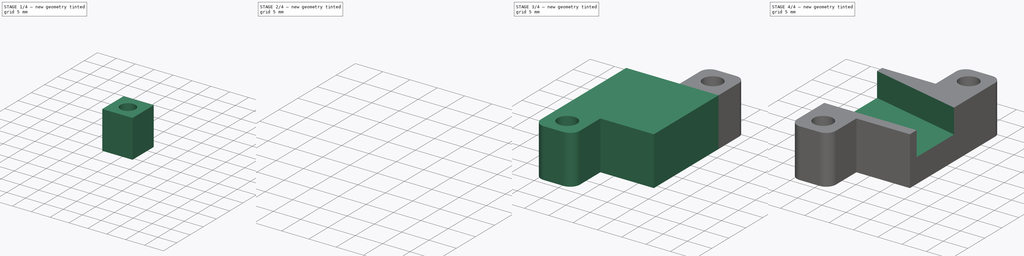
[diagram: build sequence overview — one tinted view per stage of 4, left to right]
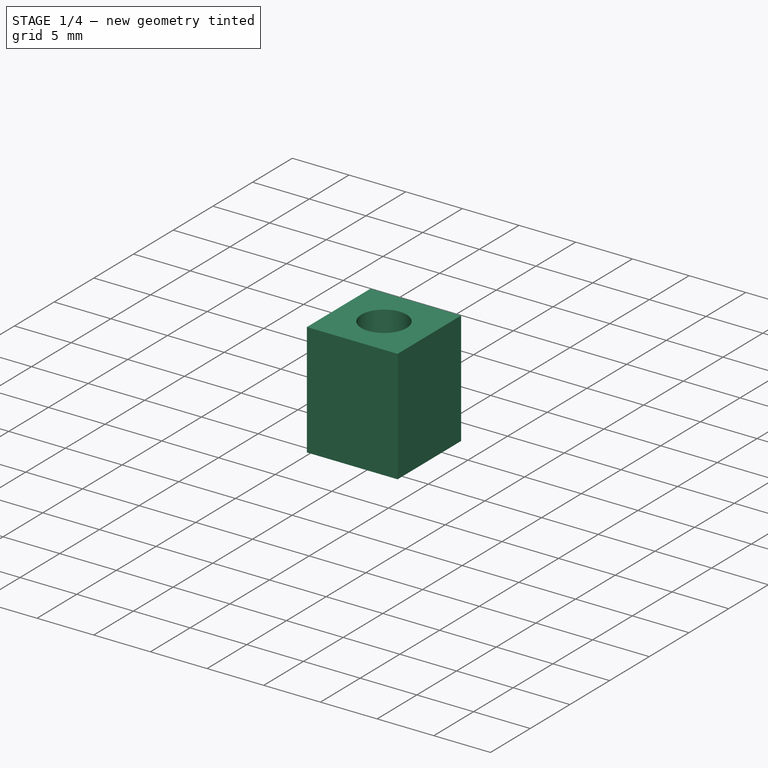
[diagram: stage 1 of 4 — iso view after this stage's code; geometry added in this stage tinted green]
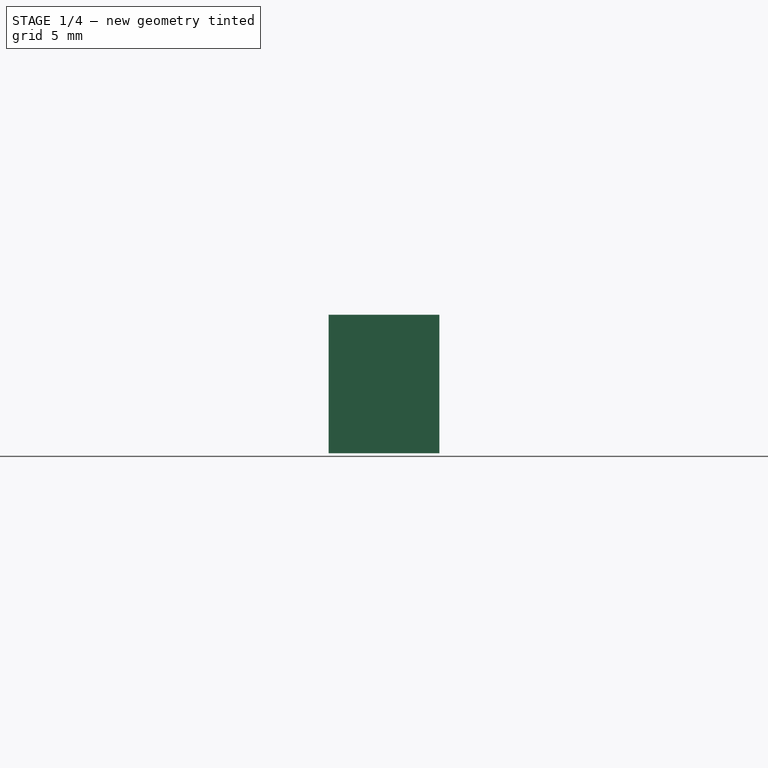
[diagram: stage 1 of 4 — front view after this stage's code; geometry added in this stage tinted green]
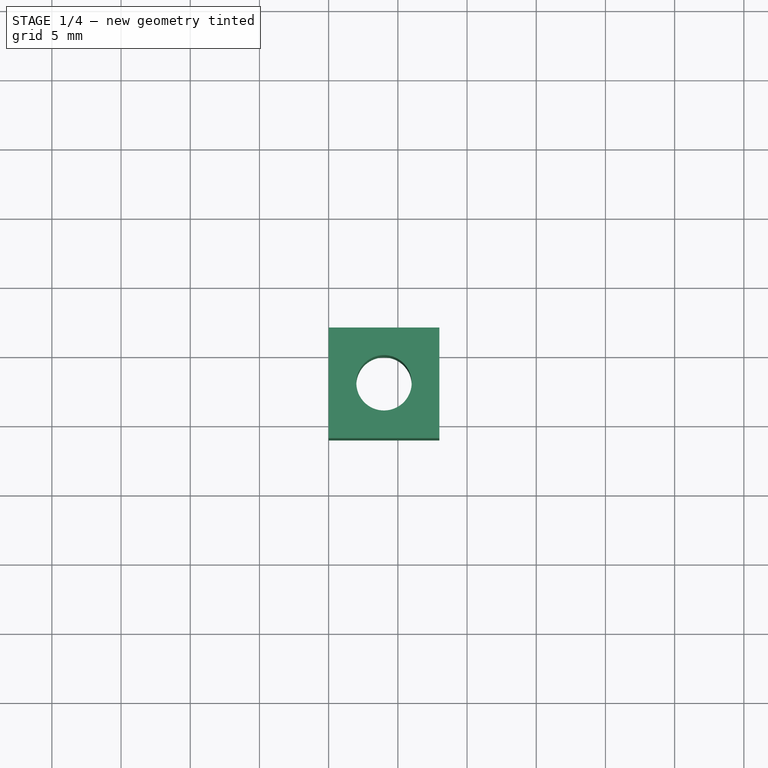
[diagram: stage 1 of 4 — top view after this stage's code; geometry added in this stage tinted green]
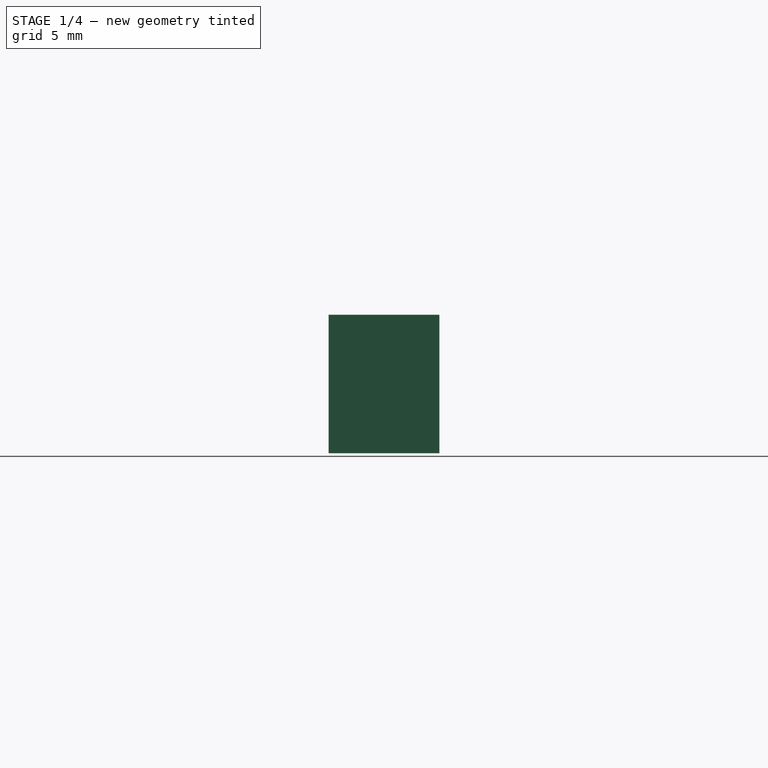
[diagram: stage 1 of 4 — right view after this stage's code; geometry added in this stage tinted green]
FCSTD DOCUMENT  (FreeCAD 0.19R)
Label: CaliperHeads
License: All rights reserved
LicenseURL: http://en.wikipedia.org/wiki/All_rights_reserved
objects: Part::Box×3, Part::Cut×3, Part::Cylinder×2, Part::Fillet×2, Sketcher::SketchObject×1, PartDesign::Pad×1, PartDesign::Body×1, Part::MultiFuse×1
note: 15 computed .brp shape members not serialized (recipe doc carries the construction recipe); baked Part::Feature solids carry a one-line shape summary decoded from their .brp

FEATURE [Part::Box] Box006  label="Cube006"
  AttacherType = Attacher::AttachEngine3D
  Height = 10
  Length = 8
  Width = 8
FEATURE [Part::Cylinder] Cylinder007
  Angle = 360
  AttacherType = Attacher::AttachEngine3D
  Height = 10
  Placement = pos=(4,4,0) rot=(0,0,1;0rad)
  Radius = 2
FEATURE [Part::Cut] Cut007
  Base = -> Box006
  Placement = pos=(45,14,0) rot=(0,0,1;0rad)
  Tool = -> Cylinder007
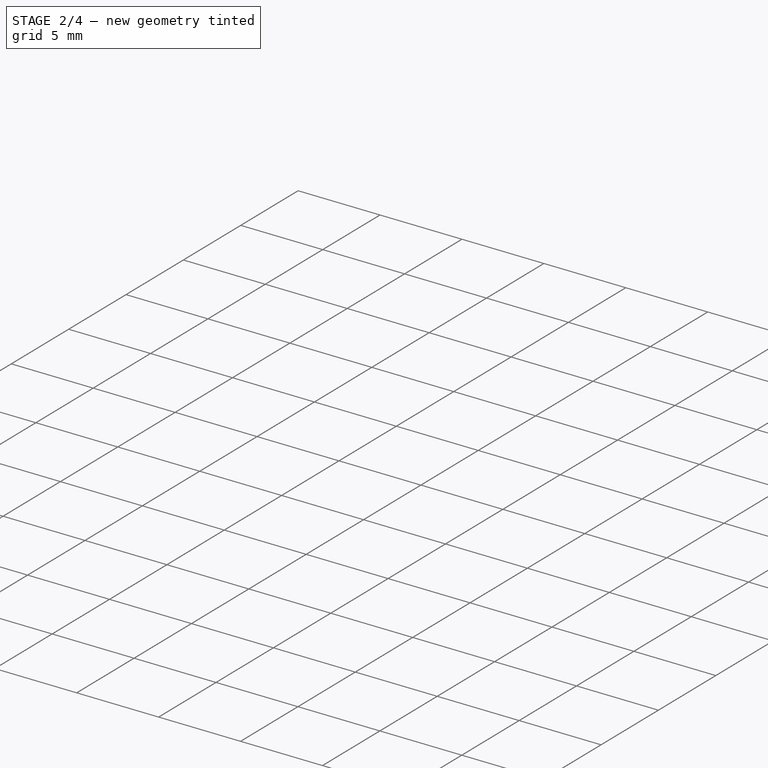
[diagram: stage 2 of 4 — iso view after this stage's code; geometry added in this stage tinted green]
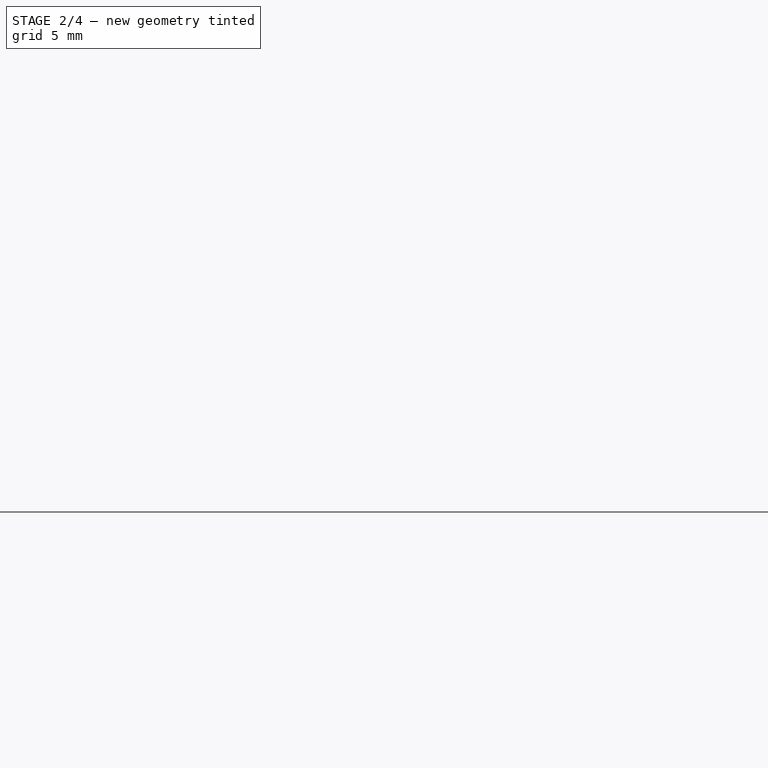
[diagram: stage 2 of 4 — front view after this stage's code; geometry added in this stage tinted green]
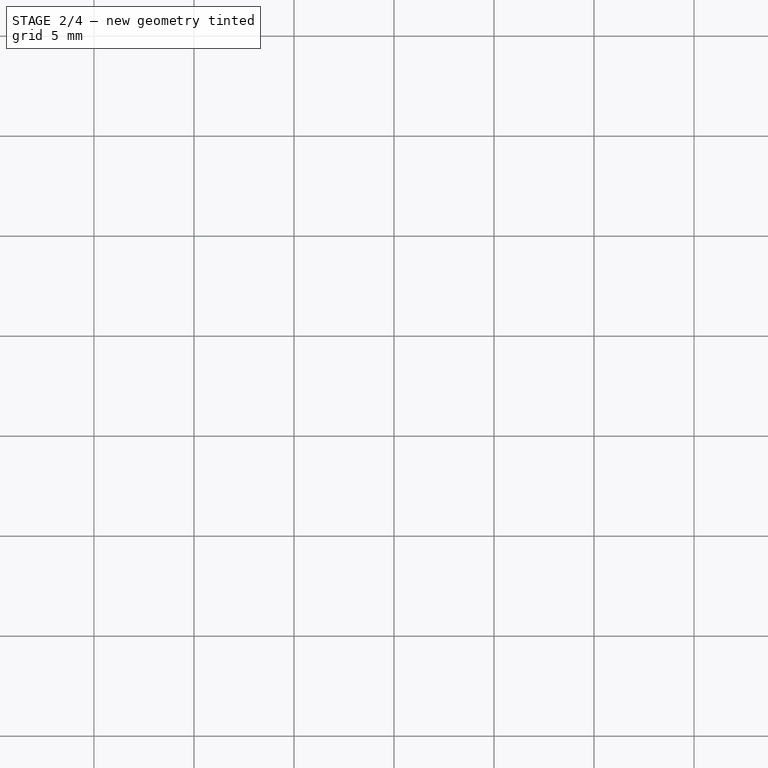
[diagram: stage 2 of 4 — top view after this stage's code; geometry added in this stage tinted green]
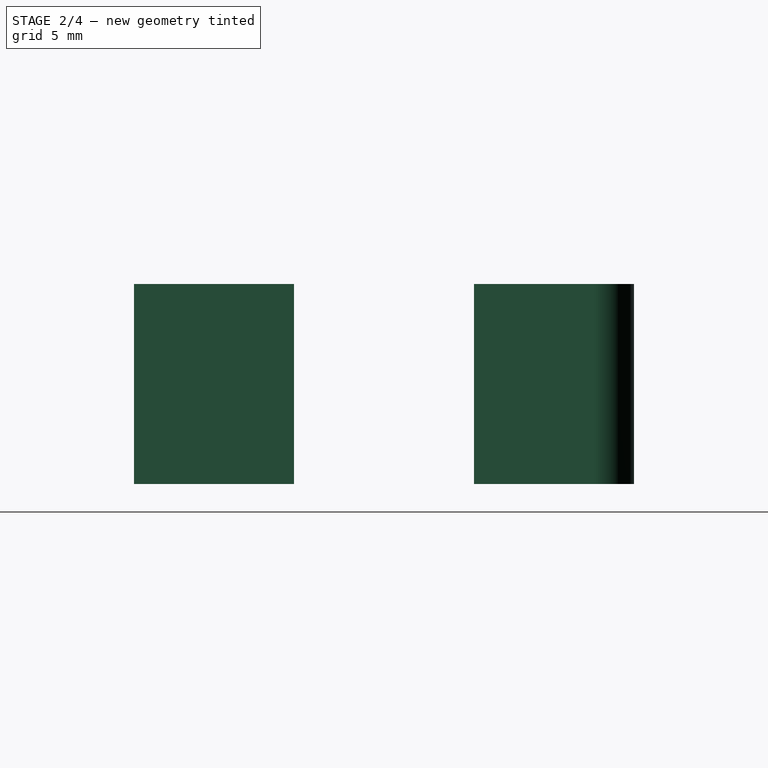
[diagram: stage 2 of 4 — right view after this stage's code; geometry added in this stage tinted green]
FEATURE [Part::Box] Box005  label="Cube005"
  AttacherType = Attacher::AttachEngine3D
  Height = 10
  Length = 8
  Width = 8
FEATURE [Part::Cylinder] Cylinder006
  Angle = 360
  AttacherType = Attacher::AttachEngine3D
  Height = 10
  Placement = pos=(4,4,0) rot=(0,0,1;0rad)
  Radius = 2
FEATURE [Part::Fillet] Fillet003
  Base = -> Cut007
  Edges = 2 edges r=2: [Edge3,Edge12]
  Placement = pos=(36,3,0) rot=(0,0,1;0rad)
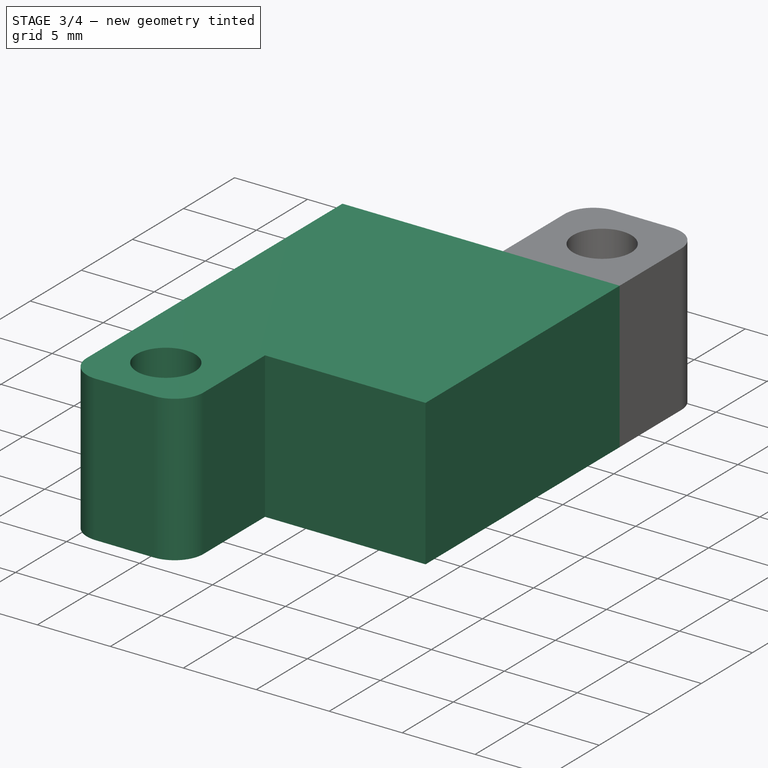
[diagram: stage 3 of 4 — iso view after this stage's code; geometry added in this stage tinted green]
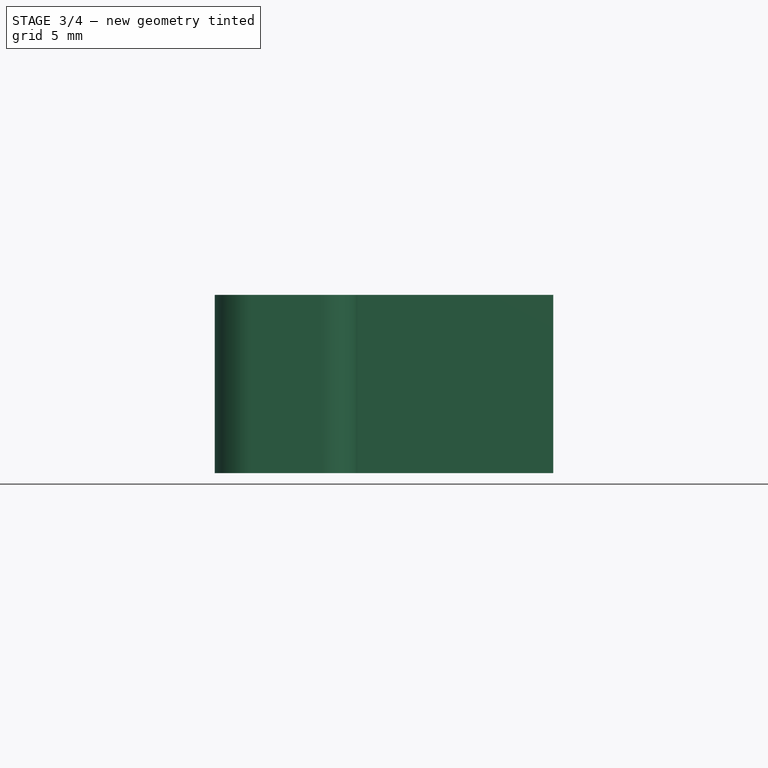
[diagram: stage 3 of 4 — front view after this stage's code; geometry added in this stage tinted green]
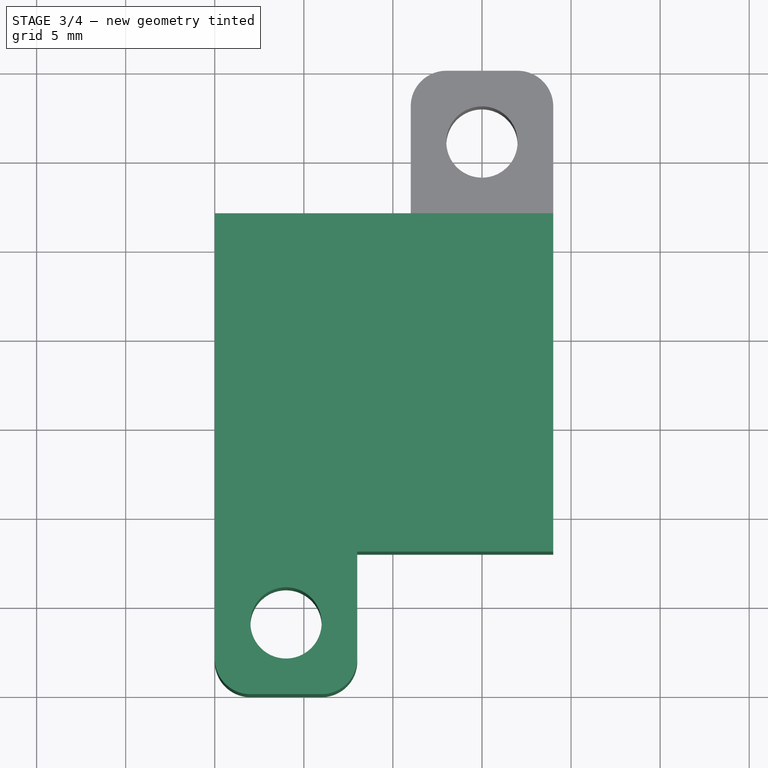
[diagram: stage 3 of 4 — top view after this stage's code; geometry added in this stage tinted green]
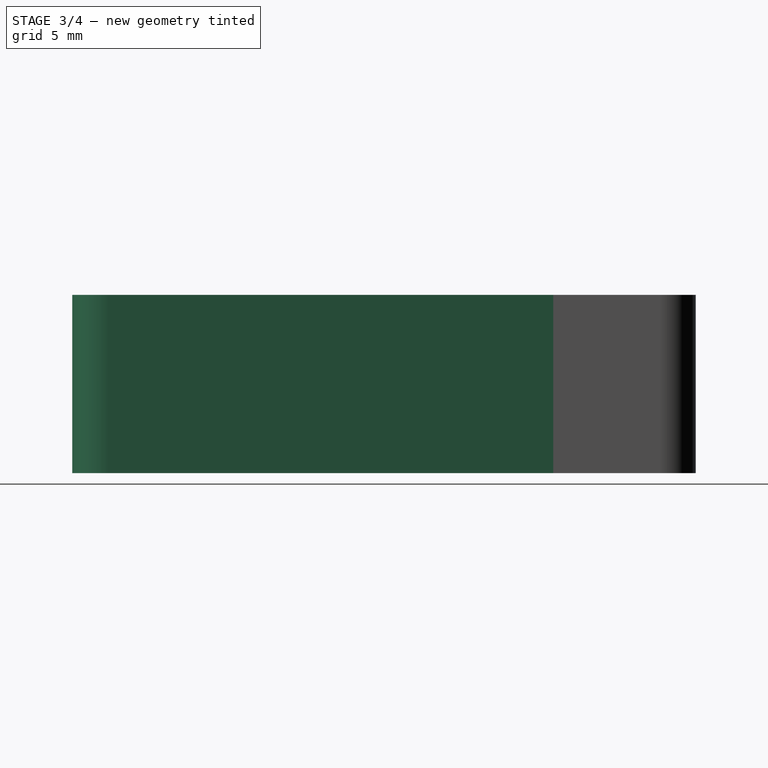
[diagram: stage 3 of 4 — right view after this stage's code; geometry added in this stage tinted green]
FEATURE [PartDesign::Body] Body002  label="300mmBody"
  Group = -> [Sketch002,Pad002]
  Origin = -> Origin002
  Placement = pos=(0,0,5) rot=(0,0,1;0rad)
  Tip = -> Pad002
FEATURE [Part::Box] Box002  label="Cube002"
  AttacherType = Attacher::AttachEngine3D
  Height = 10
  Length = 19
  Placement = pos=(70,-2,0) rot=(0,0,1;0rad)
  Width = 19
FEATURE [Part::Cut] Cut006
  Base = -> Box005
  Placement = pos=(30,-10,0) rot=(0,0,1;0rad)
  Tool = -> Cylinder006
FEATURE [Part::Fillet] Fillet002
  Base = -> Cut006
  Edges = 2 edges r=2: [Edge1,Edge6]
  Placement = pos=(40,0,0) rot=(0,0,1;0rad)
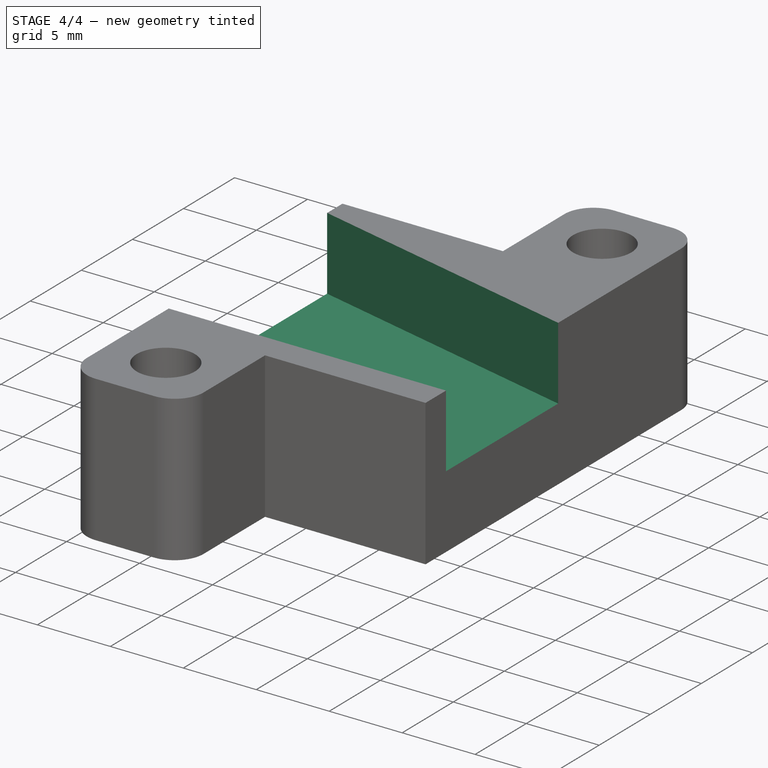
[diagram: stage 4 of 4 — iso view after this stage's code; geometry added in this stage tinted green]
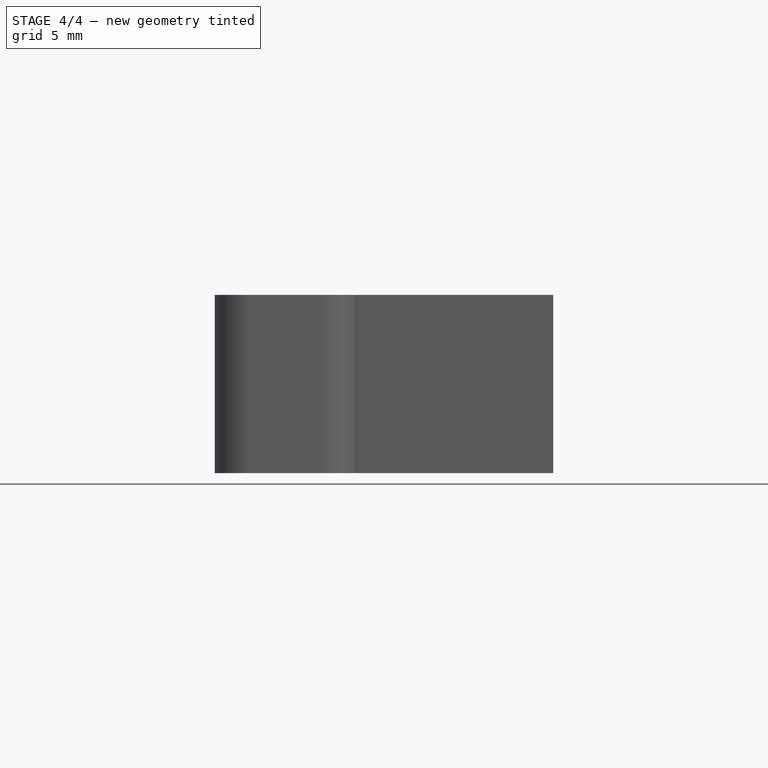
[diagram: stage 4 of 4 — front view after this stage's code; geometry added in this stage tinted green]
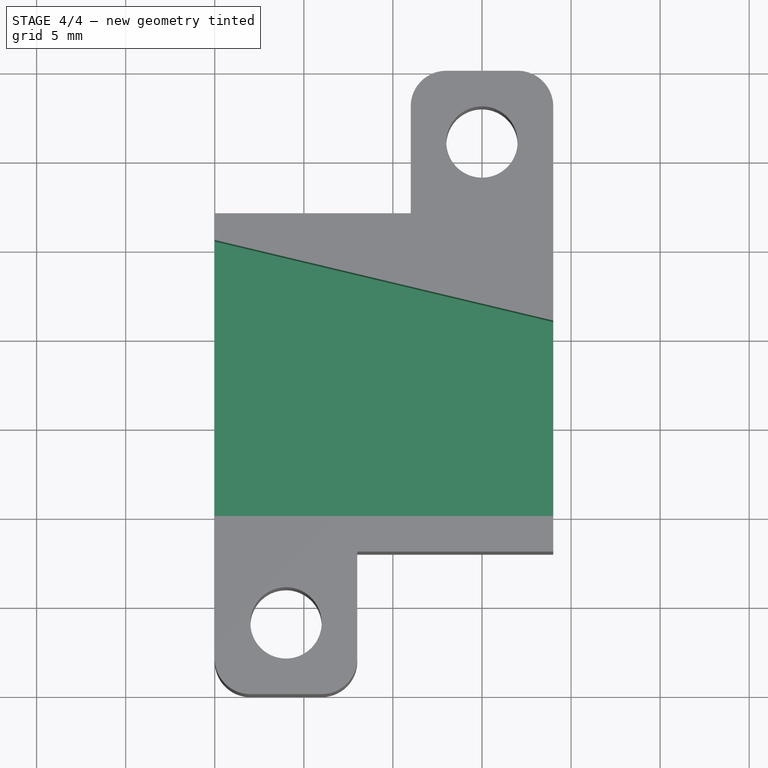
[diagram: stage 4 of 4 — top view after this stage's code; geometry added in this stage tinted green]
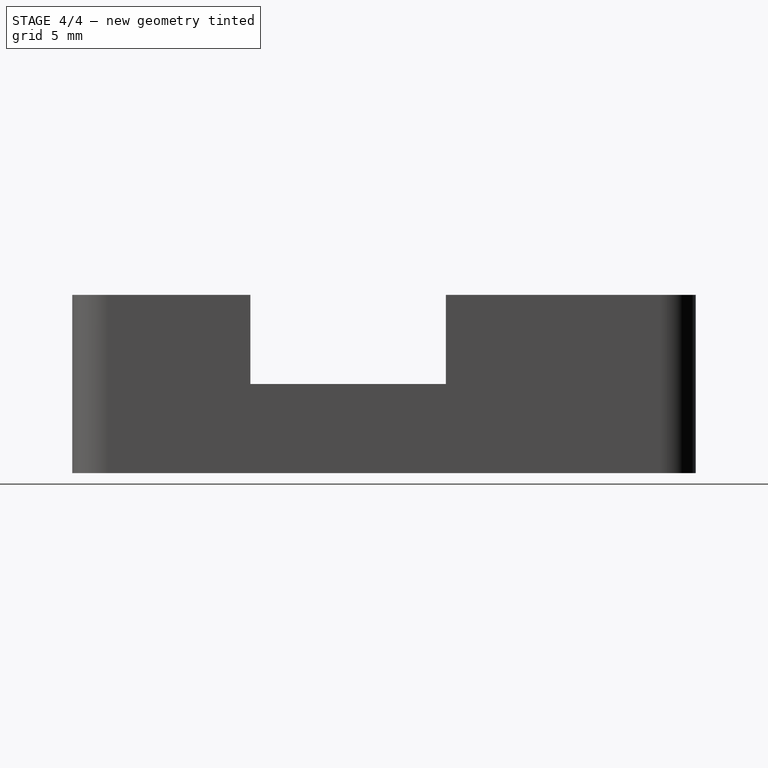
[diagram: stage 4 of 4 — right view after this stage's code; geometry added in this stage tinted green]
FEATURE [Sketcher::SketchObject] Sketch002
  FullyConstrained = true
  Placement = pos=(0,0,0) rot=(0,0,1;3.14159rad)
  sketch-geometry (4):
    g0: LineSegment StartX=-70 StartY=8.9e-15 StartZ=0 EndX=-70 EndY=-15.5 EndZ=0
    g1: LineSegment StartX=-70 StartY=-15.5 StartZ=0 EndX=-101.5 EndY=-8 EndZ=0
    g2: LineSegment StartX=-101.5 StartY=-8 StartZ=0 EndX=-101.5 EndY=8.9e-15 EndZ=0
    g3: LineSegment StartX=-101.5 StartY=8.9e-15 StartZ=0 EndX=-70 EndY=8.9e-15 EndZ=0
  constraints (12):
    c: Horizontal(g3)
    c: Vertical(g2)
    c: Vertical(g0)
    c: Coincident(g2,g3)
    c: Coincident(g0,g3)
    c: Coincident(g1,g2)
    c: Coincident(g0,g1)
    c: DistanceY(g2,g2) = 8
    c: DistanceY(g0,g0) = 15.5
    c: DistanceX(g3,g3) = 31.5
    c: DistanceX(g0,g-1) = 70
    c: DistanceY(g-1,g0) = 0
FEATURE [PartDesign::Pad] Pad002
  Direction = (1,1,1)
  Length = 5
  Length2 = 100
  Placement = pos=(0,0,0) rot=(0,0,1;3.14159rad)
  Profile = -> Sketch002
  Type = 0
FEATURE [Part::Cut] Cut002  label="300mm"
  Base = -> Box002
  Tool = -> Body002
FEATURE [Part::MultiFuse] Fusion001  label="300mmHolder"
  Shapes = -> [Cut002,Fillet002,Fillet003]
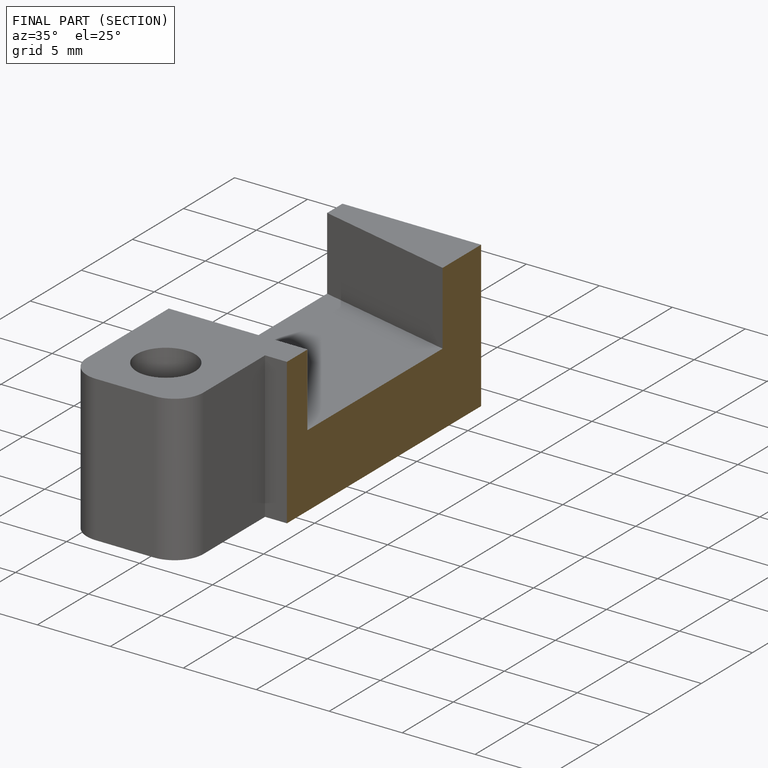
[diagram: finished part — half-section view (interior)]
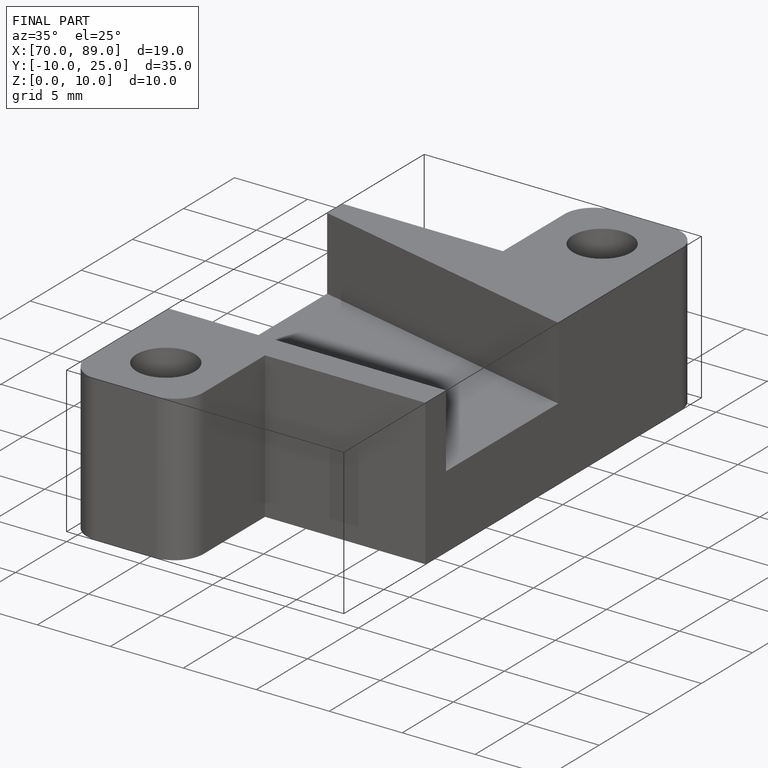
[diagram: finished part — iso view with bounding-box wireframe]
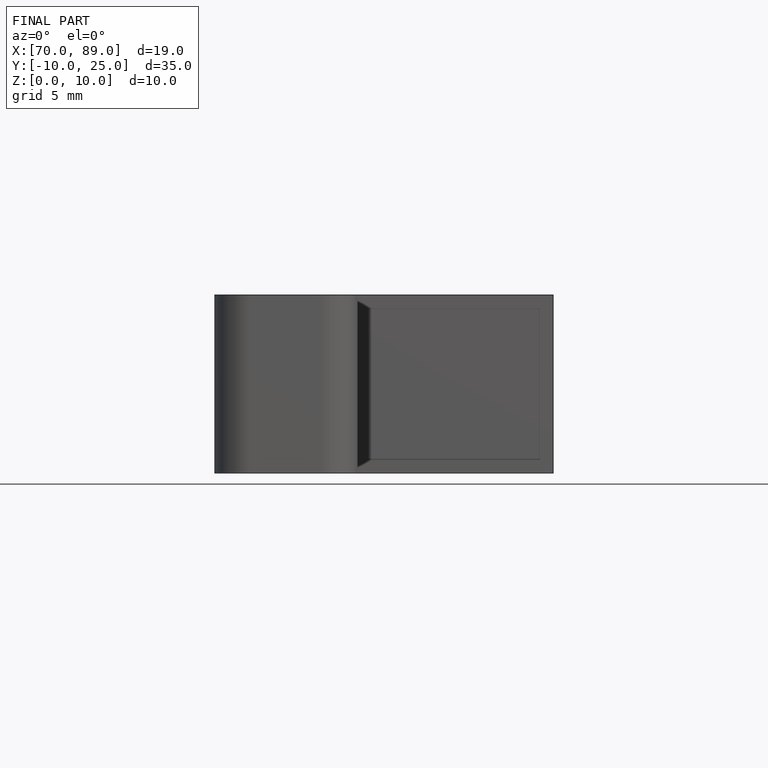
[diagram: finished part — front view with bounding-box wireframe]
